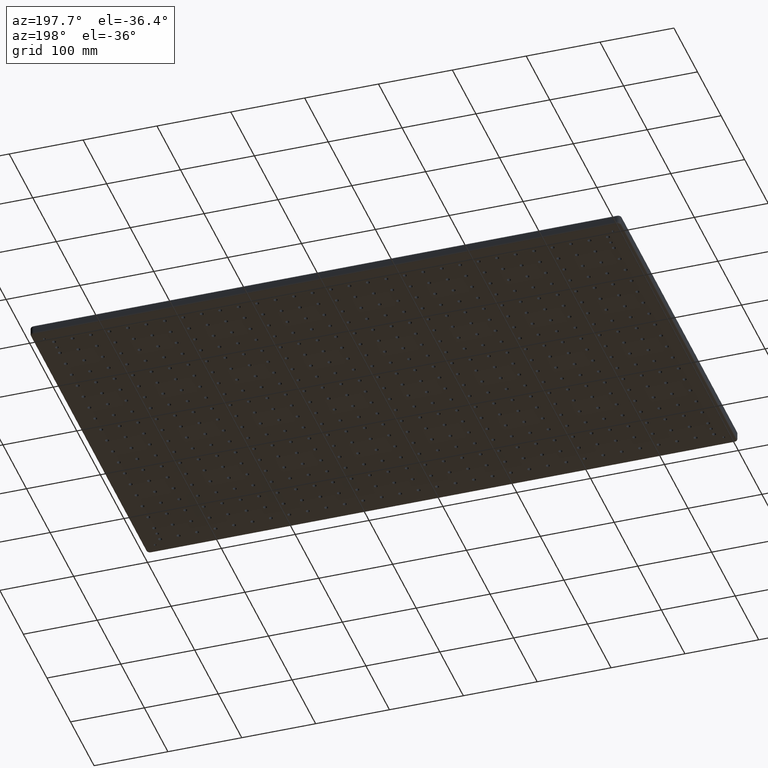
[diagram: clean part render]
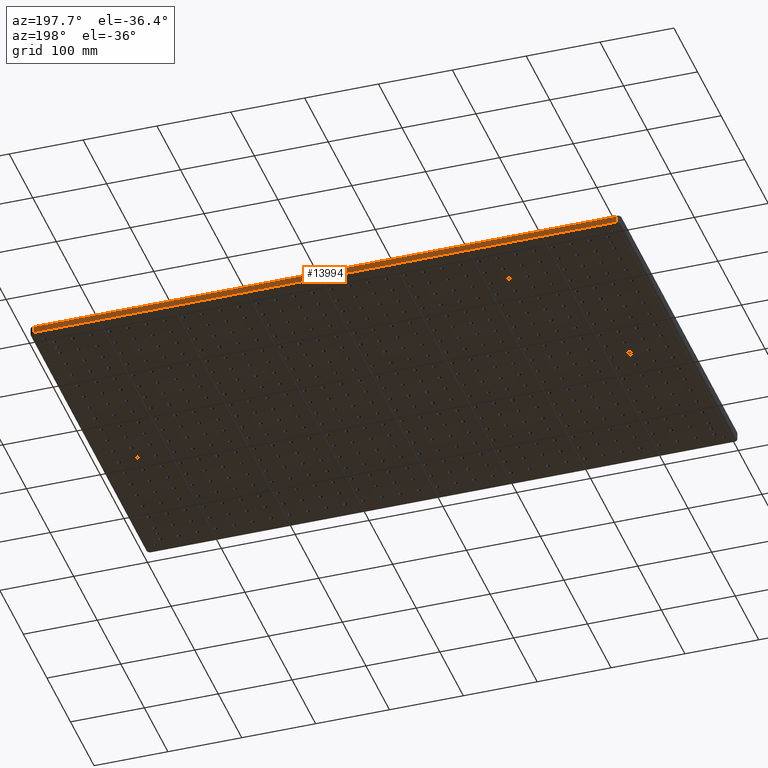
[diagram: same view with one face highlighted and labeled with its STEP entity id]
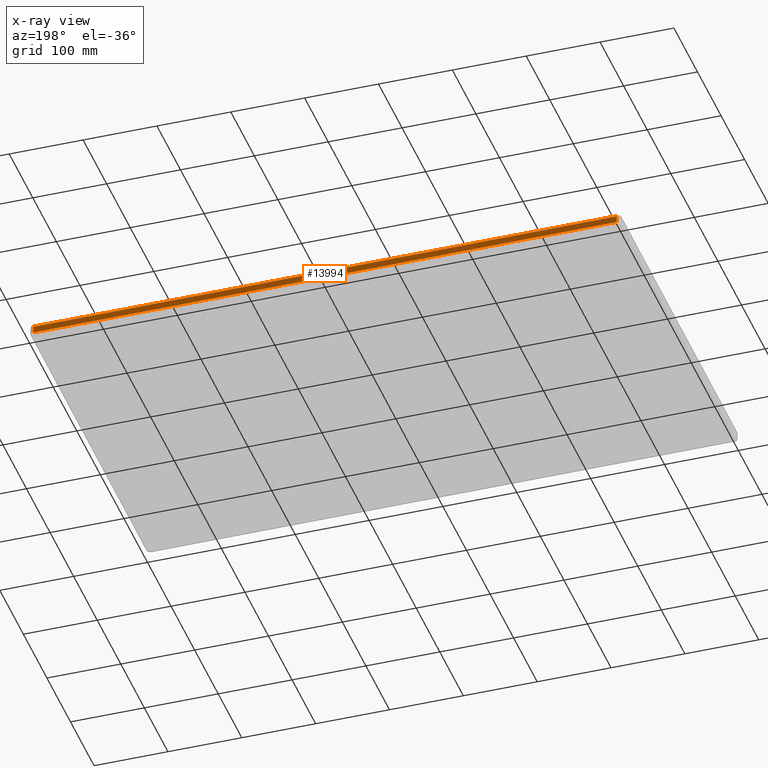
[diagram: x-ray of the same camera — body ghosted, the highlighted face saturated]
A machine part, auxiliary view. The second image highlights one B-rep face of the part: STEP entity #13994.
The next image is the same camera in x-ray: the body ghosted, the highlighted face saturated — about 0% of this face is hidden behind the body in this view.
In plain terms, the highlighted planar face has unit normal (0, 1, 0).
Its self-contained STEP definition (entity closure, byte-faithful):
#1352 = CARTESIAN_POINT ( 'NONE',  ( 4.999999999999998200, 500.0000000000000000, -2.000000000000000000 ) ) ;
#1500 = FACE_OUTER_BOUND ( 'NONE', #16974, .T. ) ;
#1894 = CARTESIAN_POINT ( 'NONE',  ( 4.999999999999998200, 500.0000000000000000, -11.00000000000000000 ) ) ;
#2179 = CARTESIAN_POINT ( 'NONE',  ( 795.0000000000000000, 500.0000000000000000, -2.000000000000000000 ) ) ;
#5523 = CARTESIAN_POINT ( 'NONE',  ( 4.999999999999998200, 500.0000000000000000, -13.00000000000000000 ) ) ;
#6141 = DIRECTION ( 'NONE',  ( 1.000000000000000000, -0.0000000000000000000, 0.0000000000000000000 ) ) ;
#6253 = LINE ( 'NONE', #5523, #32925 ) ;
#6314 = AXIS2_PLACEMENT_3D ( 'NONE', #25451, #19044, #36090 ) ;
#7630 = CARTESIAN_POINT ( 'NONE',  ( 795.0000000000000000, 500.0000000000000000, -13.00000000000000000 ) ) ;
#8971 = VECTOR ( 'NONE', #6141, 1000.000000000000000 ) ;
#9509 = CARTESIAN_POINT ( 'NONE',  ( 795.0000000000000000, 500.0000000000000000, -2.000000000000000000 ) ) ;
#11206 = VECTOR ( 'NONE', #21842, 1000.000000000000000 ) ;
#12159 = EDGE_CURVE ( 'NONE', #15512, #16650, #36910, .T. ) ;
#13212 = ORIENTED_EDGE ( 'NONE', *, *, #12159, .T. ) ;
#13994 = ADVANCED_FACE ( 'NONE', ( #1500 ), #29264, .T. ) ;
#15512 = VERTEX_POINT ( 'NONE', #9509 ) ;
#15517 = LINE ( 'NONE', #2179, #8971 ) ;
#15937 = EDGE_CURVE ( 'NONE', #43469, #24758, #6253, .T. ) ;
#16650 = VERTEX_POINT ( 'NONE', #18187 ) ;
#16974 = EDGE_LOOP ( 'NONE', ( #13212, #35102, #17261, #37279 ) ) ;
#17261 = ORIENTED_EDGE ( 'NONE', *, *, #15937, .T. ) ;
#18187 = CARTESIAN_POINT ( 'NONE',  ( 795.0000000000000000, 500.0000000000000000, -11.00000000000000000 ) ) ;
#18380 = CARTESIAN_POINT ( 'NONE',  ( 0.0000000000000000000, 500.0000000000000000, -11.00000000000000000 ) ) ;
#19044 = DIRECTION ( 'NONE',  ( 0.0000000000000000000, 1.000000000000000000, 0.0000000000000000000 ) ) ;
#21842 = DIRECTION ( 'NONE',  ( -1.000000000000000000, 0.0000000000000000000, 0.0000000000000000000 ) ) ;
#24758 = VERTEX_POINT ( 'NONE', #1352 ) ;
#25451 = CARTESIAN_POINT ( 'NONE',  ( 0.0000000000000000000, 500.0000000000000000, -13.00000000000000000 ) ) ;
#28054 = DIRECTION ( 'NONE',  ( -0.0000000000000000000, 0.0000000000000000000, -1.000000000000000000 ) ) ;
#29264 = PLANE ( 'NONE',  #6314 ) ;
#32429 = EDGE_CURVE ( 'NONE', #16650, #43469, #36268, .T. ) ;
#32525 = VECTOR ( 'NONE', #28054, 1000.000000000000000 ) ;
#32925 = VECTOR ( 'NONE', #40402, 1000.000000000000000 ) ;
#35102 = ORIENTED_EDGE ( 'NONE', *, *, #32429, .T. ) ;
#36090 = DIRECTION ( 'NONE',  ( 0.0000000000000000000, -0.0000000000000000000, 1.000000000000000000 ) ) ;
#36268 = LINE ( 'NONE', #18380, #11206 ) ;
#36910 = LINE ( 'NONE', #7630, #32525 ) ;
#37279 = ORIENTED_EDGE ( 'NONE', *, *, #37519, .T. ) ;
#37519 = EDGE_CURVE ( 'NONE', #24758, #15512, #15517, .T. ) ;
#40402 = DIRECTION ( 'NONE',  ( 0.0000000000000000000, -0.0000000000000000000, 1.000000000000000000 ) ) ;
#43469 = VERTEX_POINT ( 'NONE', #1894 ) ;